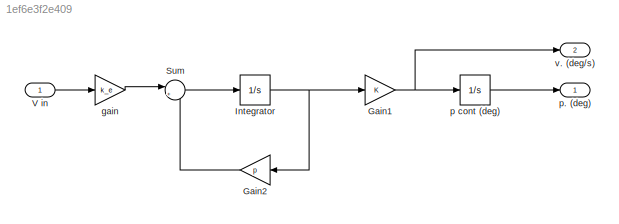
MODEL slx_1ef6e3f2e409
KIND model
CONFIG AbsTol = auto
CONFIG EnableMultiTasking = off
CONFIG FixedStep = auto
CONFIG MaxStep = auto
CONFIG MinStep = auto
CONFIG RelTol = 1e-3
CONFIG SampleTimeConstraint = Unconstrained
CONFIG SolverName = VariableStepAuto
CONFIG StartTime = 0.0
CONFIG StopTime = 10.0
BLOCK [Gain] Gain1
BLOCK [Gain] Gain2
  Gain = p
BLOCK [Integrator] Integrator
BLOCK [Sum] Sum
  Inputs = |++
BLOCK [Inport] V in
BLOCK [Gain] gain
  Gain = k_e
BLOCK [Integrator] p cont (deg)
BLOCK [Outport] p. (deg)
BLOCK [Outport] v. (deg//s)
  Port = 2
NET Gain1:1 -> p cont (deg):1, v. (deg//s):1
LINE Gain2:1 -> Sum:2
NET Integrator:1 -> Gain1:1, Gain2:1
LINE Sum:1 -> Integrator:1
LINE V in:1 -> gain:1
LINE gain:1 -> Sum:1
LINE p cont (deg):1 -> p. (deg):1
note: NET lines group one-source signal fan-out (src -> all destinations, sorted); 1:1 wires keep LINE
